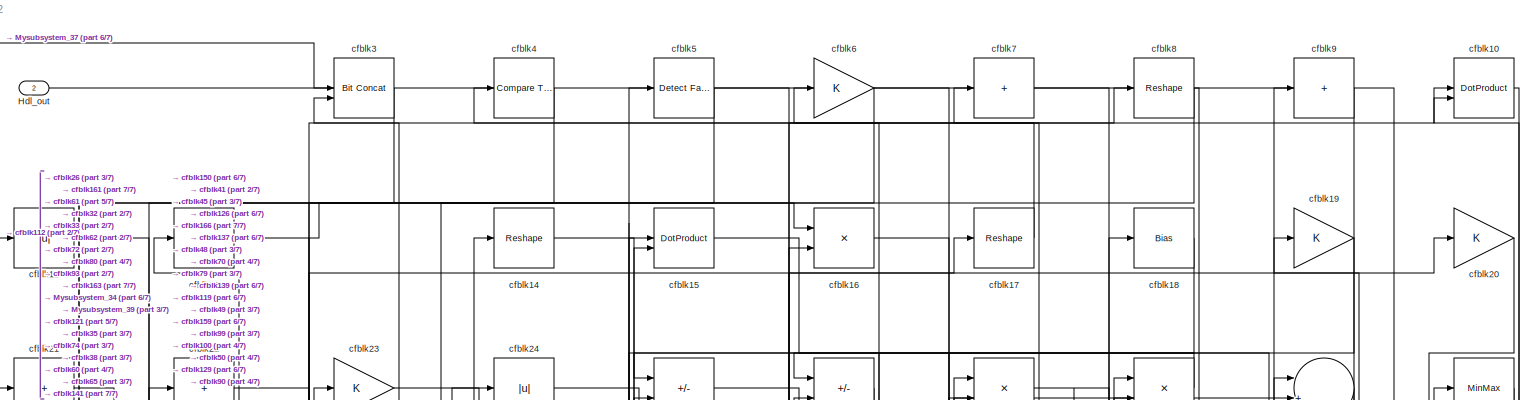
[diagram: root canvas - part 1/7, full width, top band]
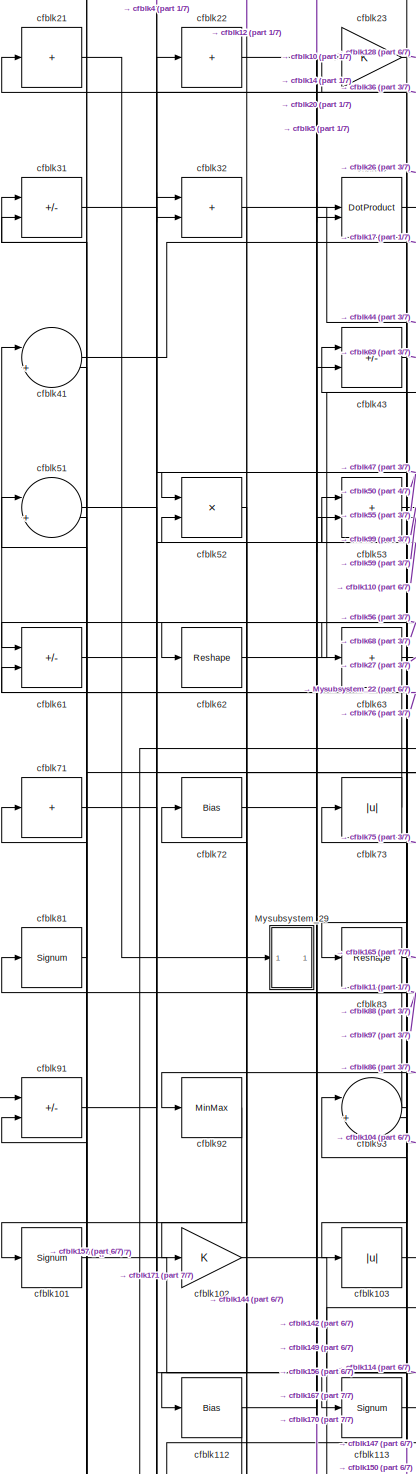
[diagram: root canvas - part 2/7, middle left region]
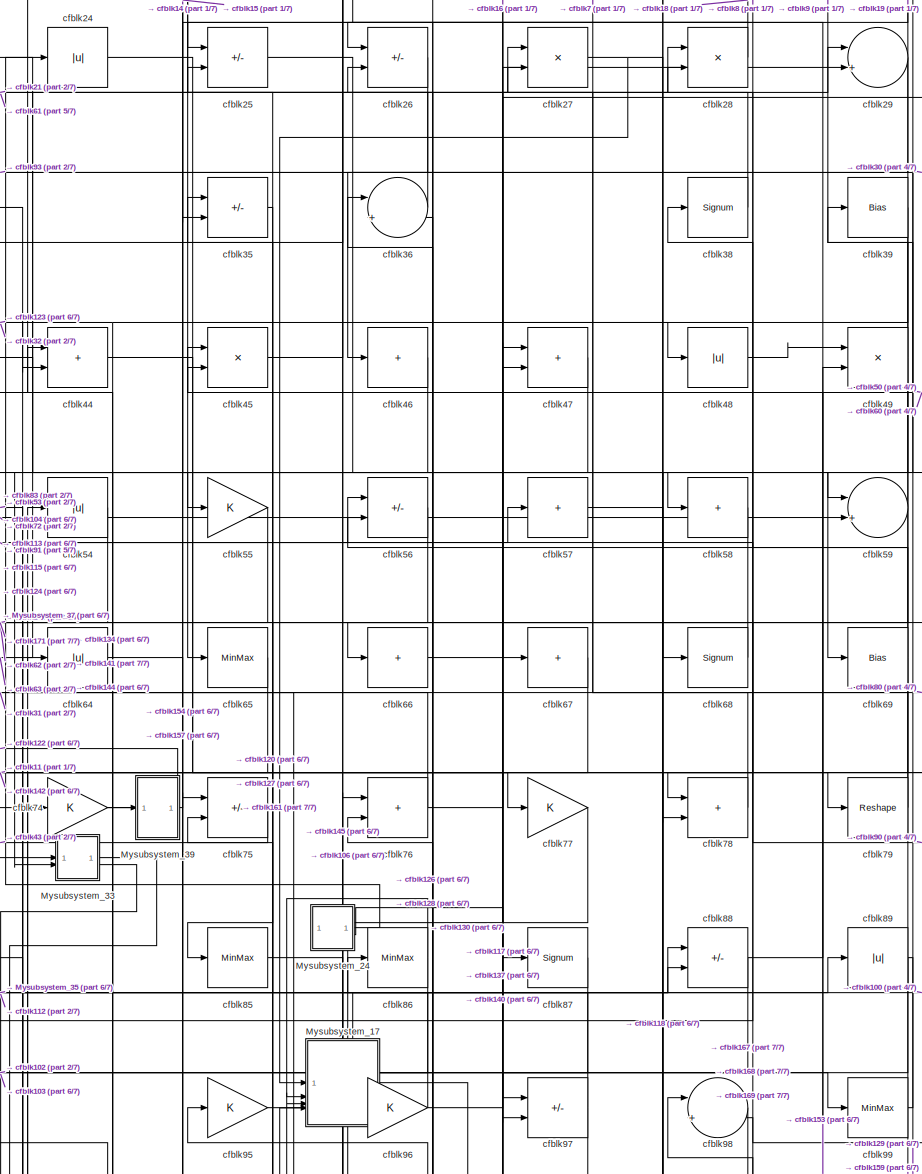
[diagram: root canvas - part 3/7, central region]
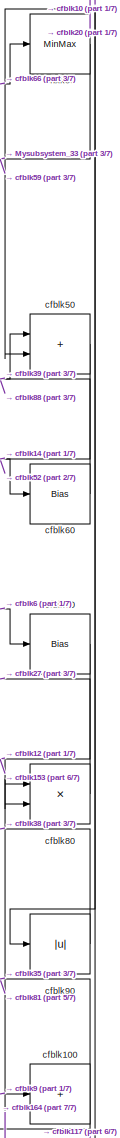
[diagram: root canvas - part 4/7, middle right region]
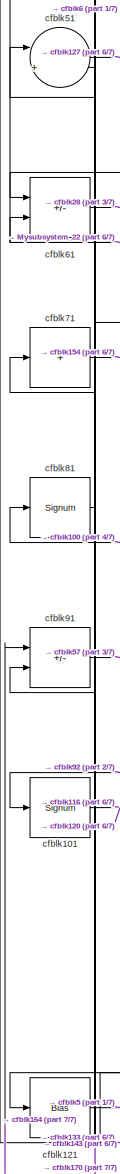
[diagram: root canvas - part 5/7, middle left region]
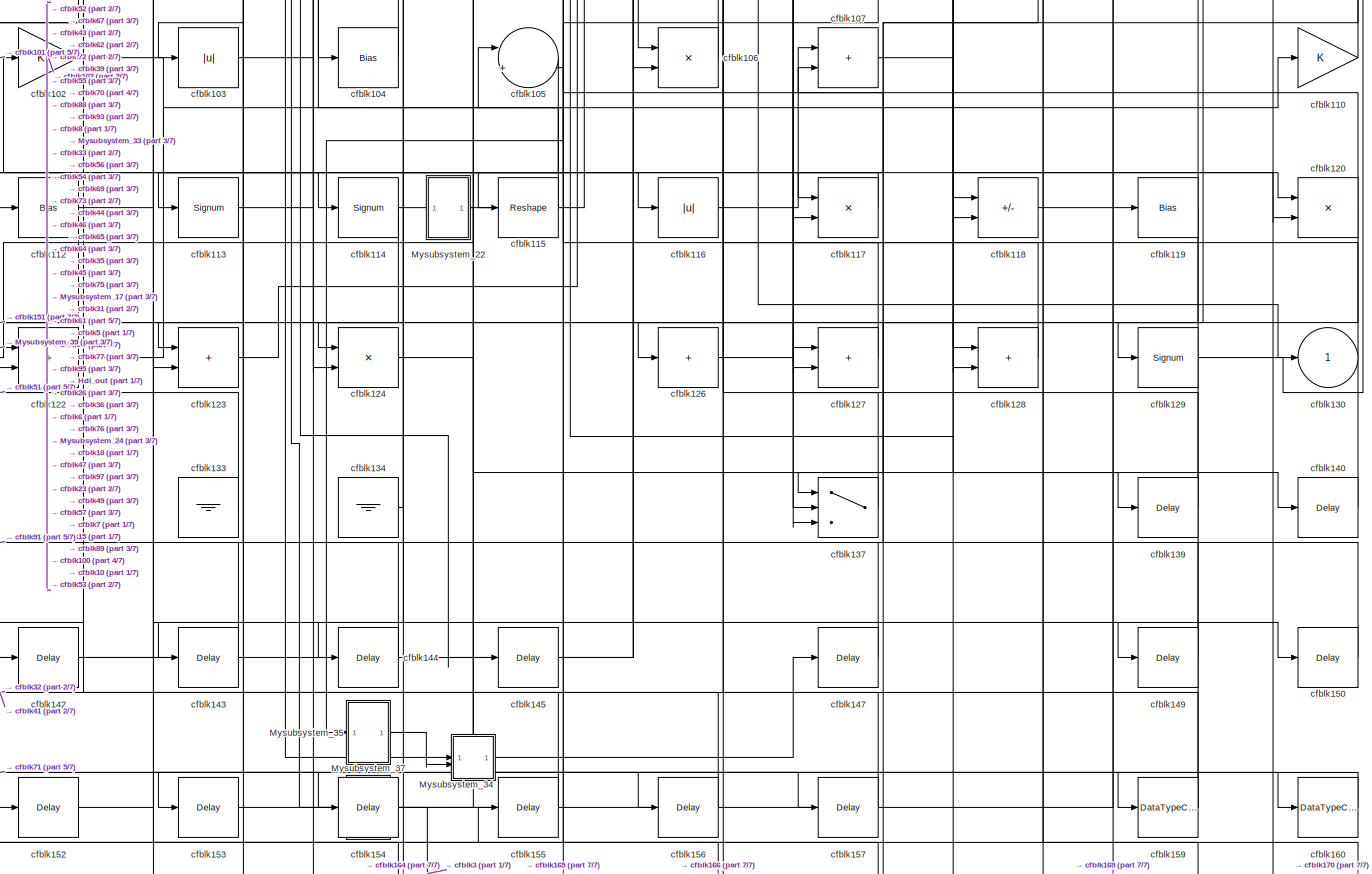
[diagram: root canvas - part 6/7, full width, bottom band]
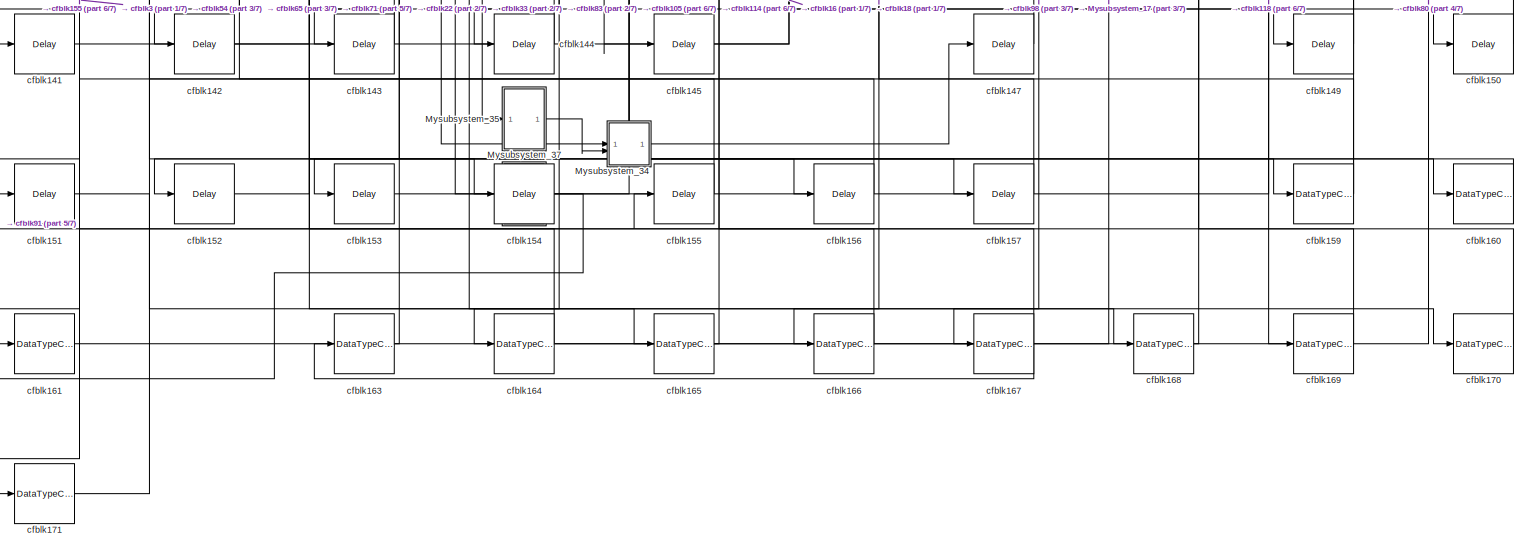
[diagram: root canvas - part 7/7, full width, bottom band]
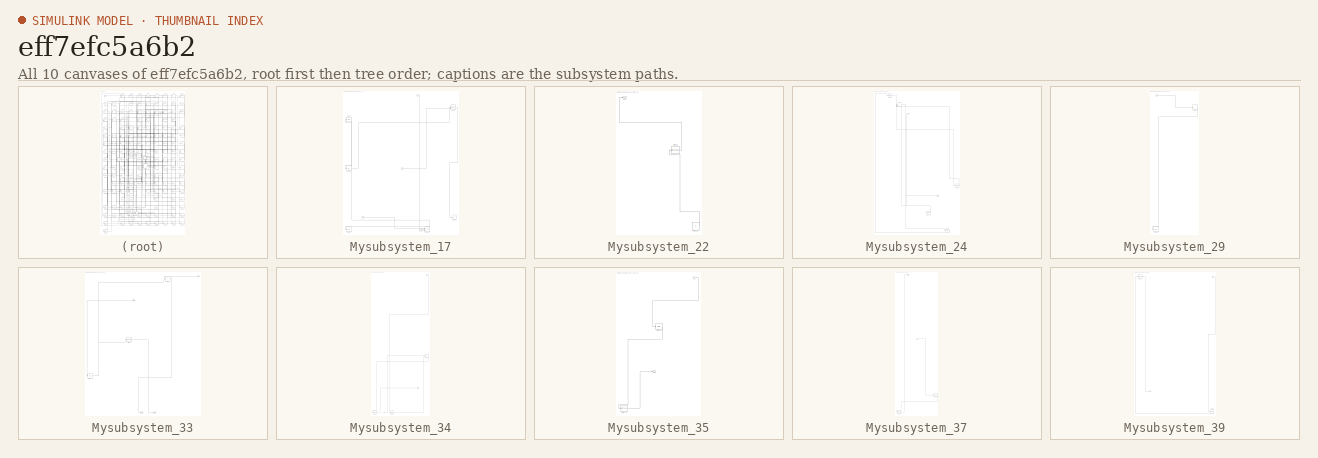
[diagram: thumbnail index - all 10 canvases of the model, root first then tree order]
MODEL slx_eff7efc5a6b2
KIND model
CONFIG AbsTol = auto
CONFIG EnableMultiTasking = off
CONFIG FixedStep = auto
CONFIG MaxStep = auto
CONFIG MinStep = auto
CONFIG RelTol = 1e-3
CONFIG SampleTimeConstraint = Unconstrained
CONFIG SolverName = VariableStepAuto
CONFIG StartTime = 0.0
CONFIG StopTime = 10.0
BLOCK [Outport] Hdl_out
  OutDataTypeStr = uint8
  Port = 2
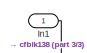
[diagram: Mysubsystem_17 - part 1/3, top center region]
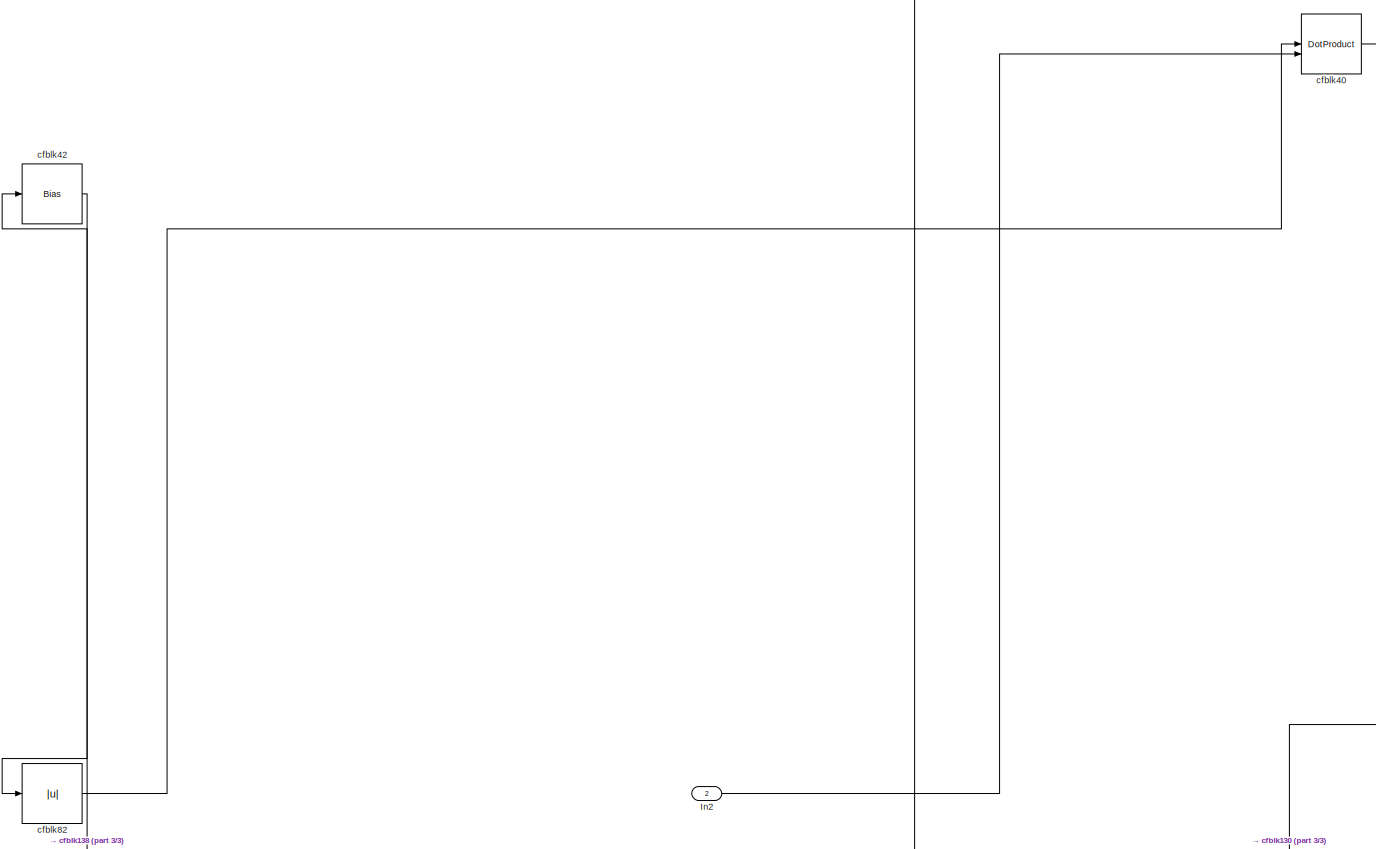
[diagram: Mysubsystem_17 - part 2/3, full width, top band]
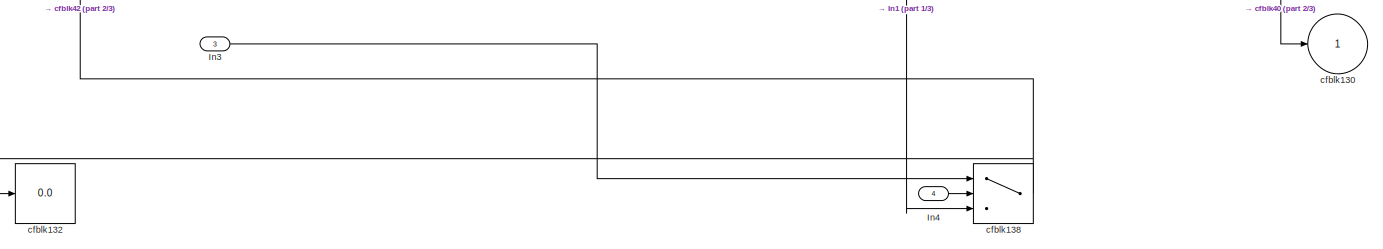
[diagram: Mysubsystem_17 - part 3/3, full width, bottom band]
BLOCK [SubSystem] Mysubsystem_17
  RTWFcnName = Mysubsystem_17
  RTWFcnNameOpts = User specified
  RTWFileNameOpts = Use function name
  RTWSystemCode = Reusable function
  TreatAsAtomicUnit = on
BLOCK [Inport] Mysubsystem_17/In1
BLOCK [Inport] Mysubsystem_17/In2
  Port = 2
BLOCK [Inport] Mysubsystem_17/In3
  Port = 3
BLOCK [Inport] Mysubsystem_17/In4
  Port = 4
BLOCK [Outport] Mysubsystem_17/cfblk130
  VectorParamsAs1DForOutWhenUnconnected = off
BLOCK [Display] Mysubsystem_17/cfblk132
  Decimation = 1
BLOCK [Switch] Mysubsystem_17/cfblk138
  InputSameDT = off
  SaturateOnIntegerOverflow = off
BLOCK [DotProduct] Mysubsystem_17/cfblk40
  OutDataTypeStr = Inherit: Inherit via internal rule
BLOCK [Bias] Mysubsystem_17/cfblk42
  Bias = 0.0
  SaturateOnIntegerOverflow = off
BLOCK [Abs] Mysubsystem_17/cfblk82
  SaturateOnIntegerOverflow = off
BLOCK [SubSystem] Mysubsystem_22
  RTWFcnName = Mysubsystem_22
  RTWFcnNameOpts = User specified
  RTWFileNameOpts = Use function name
  RTWSystemCode = Reusable function
  TreatAsAtomicUnit = on
BLOCK [Outport] Mysubsystem_22/Out1
BLOCK [Constant] Mysubsystem_22/cfblk135
  SampleTime = -1
BLOCK [Reshape] Mysubsystem_22/cfblk94
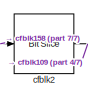
[diagram: Mysubsystem_24 - part 1/7, top left region]
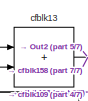
[diagram: Mysubsystem_24 - part 2/7, top left region]
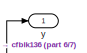
[diagram: Mysubsystem_24 - part 3/7, top center region]
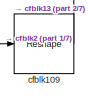
[diagram: Mysubsystem_24 - part 4/7, middle right region]
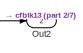
[diagram: Mysubsystem_24 - part 5/7, bottom right region]
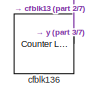
[diagram: Mysubsystem_24 - part 6/7, bottom center region]
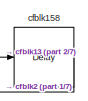
[diagram: Mysubsystem_24 - part 7/7, bottom right region]
BLOCK [SubSystem] Mysubsystem_24
  RTWFcnName = Mysubsystem_24
  RTWFcnNameOpts = User specified
  RTWFileNameOpts = Use function name
  RTWSystemCode = Reusable function
  TreatAsAtomicUnit = on
BLOCK [Outport] Mysubsystem_24/Out2
  Port = 2
BLOCK [Reshape] Mysubsystem_24/cfblk109
BLOCK [Sum] Mysubsystem_24/cfblk13
  IconShape = rectangular
BLOCK [Reference] Mysubsystem_24/cfblk136  REF=hdlsllib/Sources/Counter
Limited
  SourceBlock = hdlsllib/Sources/Counter\nLimited
  SourceType = Counter Limited
BLOCK [Delay] Mysubsystem_24/cfblk158
  InputPortMap = u0
  SampleTime = 1
BLOCK [Reference] Mysubsystem_24/cfblk2  REF=hdlsllib/Logic and Bit
Operations/Bit Slice
  SourceBlock = hdlsllib/Logic and Bit\nOperations/Bit Slice
  SourceType = Bit Slice
BLOCK [Outport] Mysubsystem_24/y
BLOCK [SubSystem] Mysubsystem_29
  RTWFcnName = Mysubsystem_29
  RTWFcnNameOpts = User specified
  RTWFileNameOpts = Use function name
  RTWSystemCode = Reusable function
  TreatAsAtomicUnit = on
BLOCK [Inport] Mysubsystem_29/In1
BLOCK [Display] Mysubsystem_29/cfblk131
  Decimation = 1
BLOCK [Sum] Mysubsystem_29/cfblk34
  IconShape = rectangular
  Inputs = +
BLOCK [SubSystem] Mysubsystem_33
  RTWFcnName = Mysubsystem_33
  RTWFcnNameOpts = User specified
  RTWFileNameOpts = Use function name
  RTWSystemCode = Reusable function
  TreatAsAtomicUnit = on
BLOCK [Inport] Mysubsystem_33/In1
BLOCK [Inport] Mysubsystem_33/In2
  Port = 2
BLOCK [Outport] Mysubsystem_33/Out1
BLOCK [Outport] Mysubsystem_33/Out2
  Port = 2
BLOCK [Abs] Mysubsystem_33/cfblk111
  SaturateOnIntegerOverflow = off
BLOCK [Product] Mysubsystem_33/cfblk37
  Inputs = */
  RndMeth = Zero
  SaturateOnIntegerOverflow = on
BLOCK [Reshape] Mysubsystem_33/cfblk84
BLOCK [SubSystem] Mysubsystem_34
  RTWFcnName = Mysubsystem_34
  RTWFcnNameOpts = User specified
  RTWFileNameOpts = Use function name
  RTWSystemCode = Reusable function
  TreatAsAtomicUnit = on
BLOCK [Inport] Mysubsystem_34/In1
BLOCK [Inport] Mysubsystem_34/In2
  Port = 2
BLOCK [Outport] Mysubsystem_34/Out1
BLOCK [Product] Mysubsystem_34/cfblk108
  Inputs = */
  RndMeth = Zero
  SaturateOnIntegerOverflow = on
BLOCK [DataTypeConversion] Mysubsystem_34/cfblk172
  OutDataTypeStr = uint8
  RndMeth = Floor
  SaturateOnIntegerOverflow = off
BLOCK [DataTypeConversion] Mysubsystem_34/cfblk174
  OutDataTypeStr = uint8
  RndMeth = Floor
  SaturateOnIntegerOverflow = off
BLOCK [SubSystem] Mysubsystem_35
  RTWFcnName = Mysubsystem_35
  RTWFcnNameOpts = User specified
  RTWFileNameOpts = Use function name
  RTWSystemCode = Reusable function
  TreatAsAtomicUnit = on
BLOCK [Inport] Mysubsystem_35/In1
BLOCK [Outport] Mysubsystem_35/Out1
BLOCK [Bias] Mysubsystem_35/cfblk125
  Bias = 0.0
  SaturateOnIntegerOverflow = off
BLOCK [DataTypeConversion] Mysubsystem_35/cfblk173
  OutDataTypeStr = uint8
  RndMeth = Floor
  SaturateOnIntegerOverflow = off
BLOCK [SubSystem] Mysubsystem_37
  RTWFcnName = Mysubsystem_37
  RTWFcnNameOpts = User specified
  RTWFileNameOpts = Use function name
  RTWSystemCode = Reusable function
  TreatAsAtomicUnit = on
BLOCK [Inport] Mysubsystem_37/In1
BLOCK [Outport] Mysubsystem_37/Out1
BLOCK [Delay] Mysubsystem_37/cfblk146
  InputPortMap = u0
  SampleTime = 1
BLOCK [DataTypeConversion] Mysubsystem_37/cfblk162
  OutDataTypeStr = uint8
  RndMeth = Floor
  SaturateOnIntegerOverflow = off
BLOCK [SubSystem] Mysubsystem_39
  RTWFcnName = Mysubsystem_39
  RTWFcnNameOpts = User specified
  RTWFileNameOpts = Use function name
  RTWSystemCode = Reusable function
  TreatAsAtomicUnit = on
BLOCK [Inport] Mysubsystem_39/In1
BLOCK [Outport] Mysubsystem_39/Y
BLOCK [Reference] Mysubsystem_39/cfblk1  REF=simulink/Logic and Bit
Operations/Detect
Decrease
  LibrarySourceBlock = hdlsllib/Logic and Bit\nOperations/Detect\nDecrease
  SourceBlock = simulink/Logic and Bit\nOperations/Detect\nDecrease
  SourceType = Detect Decrease
BLOCK [Delay] Mysubsystem_39/cfblk148
  InputPortMap = u0
  SampleTime = 1
BLOCK [DotProduct] cfblk10
  OutDataTypeStr = uint8
BLOCK [Sum] cfblk100
  IconShape = rectangular
  Inputs = +
  OutDataTypeStr = uint8
BLOCK [Signum] cfblk101
BLOCK [Gain] cfblk102
  OutDataTypeStr = uint8
BLOCK [Abs] cfblk103
  OutDataTypeStr = uint8
  SaturateOnIntegerOverflow = off
BLOCK [Bias] cfblk104
  Bias = 0.0
  SaturateOnIntegerOverflow = off
BLOCK [Sum] cfblk105
  Inputs = |++
  OutDataTypeStr = uint8
BLOCK [Product] cfblk106
  Inputs = */
  OutDataTypeStr = uint8
  RndMeth = Zero
  SaturateOnIntegerOverflow = on
BLOCK [Sum] cfblk107
  IconShape = rectangular
  OutDataTypeStr = uint8
BLOCK [Abs] cfblk11
  OutDataTypeStr = uint8
  SaturateOnIntegerOverflow = off
BLOCK [Gain] cfblk110
  OutDataTypeStr = uint8
BLOCK [Bias] cfblk112
  Bias = 0.0
  SaturateOnIntegerOverflow = off
BLOCK [Signum] cfblk113
BLOCK [Signum] cfblk114
BLOCK [Reshape] cfblk115
BLOCK [Abs] cfblk116
  OutDataTypeStr = uint8
  SaturateOnIntegerOverflow = off
BLOCK [Product] cfblk117
  Inputs = */
  OutDataTypeStr = uint8
  RndMeth = Zero
  SaturateOnIntegerOverflow = on
BLOCK [Sum] cfblk118
  IconShape = rectangular
  Inputs = +-
  OutDataTypeStr = uint8
BLOCK [Bias] cfblk119
  Bias = 0.0
  SaturateOnIntegerOverflow = off
BLOCK [Sum] cfblk12
  IconShape = rectangular
  Inputs = +
  OutDataTypeStr = uint8
BLOCK [Product] cfblk120
  Inputs = */
  OutDataTypeStr = uint8
  RndMeth = Zero
  SaturateOnIntegerOverflow = on
BLOCK [Bias] cfblk121
  Bias = 0.0
  SaturateOnIntegerOverflow = off
BLOCK [Sum] cfblk122
  IconShape = rectangular
  OutDataTypeStr = uint8
BLOCK [Sum] cfblk123
  IconShape = rectangular
  OutDataTypeStr = uint8
BLOCK [Product] cfblk124
  Inputs = */
  OutDataTypeStr = uint8
  RndMeth = Zero
  SaturateOnIntegerOverflow = on
BLOCK [Sum] cfblk126
  IconShape = rectangular
  Inputs = +
  OutDataTypeStr = uint8
BLOCK [Sum] cfblk127
  IconShape = rectangular
  OutDataTypeStr = uint8
BLOCK [Sum] cfblk128
  IconShape = rectangular
  OutDataTypeStr = uint8
BLOCK [Signum] cfblk129
BLOCK [Outport] cfblk130
  OutDataTypeStr = uint8
  VectorParamsAs1DForOutWhenUnconnected = off
BLOCK [Ground] cfblk133
BLOCK [Ground] cfblk134
BLOCK [Switch] cfblk137
  InputSameDT = off
  OutDataTypeStr = uint8
  SaturateOnIntegerOverflow = off
BLOCK [Delay] cfblk139
  InputPortMap = u0
  SampleTime = 1
BLOCK [Reshape] cfblk14
BLOCK [Delay] cfblk140
  InputPortMap = u0
  SampleTime = 1
BLOCK [Delay] cfblk141
  InputPortMap = u0
  SampleTime = 1
BLOCK [Delay] cfblk142
  InputPortMap = u0
  SampleTime = 1
BLOCK [Delay] cfblk143
  InputPortMap = u0
  SampleTime = 1
BLOCK [Delay] cfblk144
  InputPortMap = u0
  SampleTime = 1
BLOCK [Delay] cfblk145
  InputPortMap = u0
  SampleTime = 1
BLOCK [Delay] cfblk147
  InputPortMap = u0
  SampleTime = 1
BLOCK [Delay] cfblk149
  InputPortMap = u0
  SampleTime = 1
BLOCK [DotProduct] cfblk15
  OutDataTypeStr = uint8
BLOCK [Delay] cfblk150
  InputPortMap = u0
  SampleTime = 1
BLOCK [Delay] cfblk151
  InputPortMap = u0
  SampleTime = 1
BLOCK [Delay] cfblk152
  InputPortMap = u0
  SampleTime = 1
BLOCK [Delay] cfblk153
  InputPortMap = u0
  SampleTime = 1
BLOCK [Delay] cfblk154
  InputPortMap = u0
  SampleTime = 1
BLOCK [Delay] cfblk155
  InputPortMap = u0
  SampleTime = 1
BLOCK [Delay] cfblk156
  InputPortMap = u0
  SampleTime = 1
BLOCK [Delay] cfblk157
  InputPortMap = u0
  SampleTime = 1
BLOCK [DataTypeConversion] cfblk159
  OutDataTypeStr = uint8
  RndMeth = Floor
  SaturateOnIntegerOverflow = off
BLOCK [Product] cfblk16
  Inputs = */
  OutDataTypeStr = uint8
  RndMeth = Zero
  SaturateOnIntegerOverflow = on
BLOCK [DataTypeConversion] cfblk160
  OutDataTypeStr = uint8
  RndMeth = Floor
  SaturateOnIntegerOverflow = off
BLOCK [DataTypeConversion] cfblk161
  OutDataTypeStr = uint8
  RndMeth = Floor
  SaturateOnIntegerOverflow = off
BLOCK [DataTypeConversion] cfblk163
  OutDataTypeStr = uint8
  RndMeth = Floor
  SaturateOnIntegerOverflow = off
BLOCK [DataTypeConversion] cfblk164
  OutDataTypeStr = uint8
  RndMeth = Floor
  SaturateOnIntegerOverflow = off
BLOCK [DataTypeConversion] cfblk165
  OutDataTypeStr = uint8
  RndMeth = Floor
  SaturateOnIntegerOverflow = off
BLOCK [DataTypeConversion] cfblk166
  OutDataTypeStr = uint8
  RndMeth = Floor
  SaturateOnIntegerOverflow = off
BLOCK [DataTypeConversion] cfblk167
  OutDataTypeStr = uint8
  RndMeth = Floor
  SaturateOnIntegerOverflow = off
BLOCK [DataTypeConversion] cfblk168
  OutDataTypeStr = uint8
  RndMeth = Floor
  SaturateOnIntegerOverflow = off
BLOCK [DataTypeConversion] cfblk169
  OutDataTypeStr = uint8
  RndMeth = Floor
  SaturateOnIntegerOverflow = off
BLOCK [Reshape] cfblk17
BLOCK [DataTypeConversion] cfblk170
  OutDataTypeStr = uint8
  RndMeth = Floor
  SaturateOnIntegerOverflow = off
BLOCK [DataTypeConversion] cfblk171
  OutDataTypeStr = uint8
  RndMeth = Floor
  SaturateOnIntegerOverflow = off
BLOCK [Bias] cfblk18
  Bias = 0.0
  SaturateOnIntegerOverflow = off
BLOCK [Gain] cfblk19
  OutDataTypeStr = uint8
BLOCK [Gain] cfblk20
  OutDataTypeStr = uint8
BLOCK [Sum] cfblk21
  IconShape = rectangular
  Inputs = +
  OutDataTypeStr = uint8
BLOCK [Sum] cfblk22
  IconShape = rectangular
  Inputs = +
  OutDataTypeStr = uint8
BLOCK [Gain] cfblk23
  OutDataTypeStr = uint8
BLOCK [Abs] cfblk24
  OutDataTypeStr = uint8
  SaturateOnIntegerOverflow = off
BLOCK [Sum] cfblk25
  IconShape = rectangular
  Inputs = +-
  OutDataTypeStr = uint8
BLOCK [Sum] cfblk26
  IconShape = rectangular
  Inputs = +-
  OutDataTypeStr = uint8
BLOCK [Product] cfblk27
  Inputs = */
  OutDataTypeStr = uint8
  RndMeth = Zero
  SaturateOnIntegerOverflow = on
BLOCK [Product] cfblk28
  Inputs = */
  OutDataTypeStr = uint8
  RndMeth = Zero
  SaturateOnIntegerOverflow = on
BLOCK [Sum] cfblk29
  Inputs = |++
  OutDataTypeStr = uint8
BLOCK [Reference] cfblk3  REF=hdlsllib/Logic and Bit
Operations/Bit Concat
  SourceBlock = hdlsllib/Logic and Bit\nOperations/Bit Concat
  SourceType = Bit Concat
BLOCK [MinMax] cfblk30
  OutDataTypeStr = uint8
BLOCK [Sum] cfblk31
  IconShape = rectangular
  Inputs = +-
  OutDataTypeStr = uint8
BLOCK [Sum] cfblk32
  IconShape = rectangular
  OutDataTypeStr = uint8
BLOCK [DotProduct] cfblk33
  OutDataTypeStr = uint8
BLOCK [Sum] cfblk35
  IconShape = rectangular
  Inputs = +-
  OutDataTypeStr = uint8
BLOCK [Sum] cfblk36
  Inputs = |++
  OutDataTypeStr = uint8
BLOCK [Signum] cfblk38
BLOCK [Bias] cfblk39
  Bias = 0.0
  SaturateOnIntegerOverflow = off
BLOCK [Reference] cfblk4  REF=hdlsllib/Logic and Bit
Operations/Compare
To Zero
  SourceBlock = hdlsllib/Logic and Bit\nOperations/Compare\nTo Zero
  SourceType = Compare To Zero
BLOCK [Sum] cfblk41
  Inputs = |++
  OutDataTypeStr = uint8
BLOCK [Sum] cfblk43
  IconShape = rectangular
  Inputs = +-
  OutDataTypeStr = uint8
BLOCK [Sum] cfblk44
  IconShape = rectangular
  OutDataTypeStr = uint8
BLOCK [Product] cfblk45
  Inputs = */
  OutDataTypeStr = uint8
  RndMeth = Zero
  SaturateOnIntegerOverflow = on
BLOCK [Sum] cfblk46
  IconShape = rectangular
  Inputs = +
  OutDataTypeStr = uint8
BLOCK [Sum] cfblk47
  IconShape = rectangular
  OutDataTypeStr = uint8
BLOCK [Abs] cfblk48
  OutDataTypeStr = uint8
  SaturateOnIntegerOverflow = off
BLOCK [Product] cfblk49
  Inputs = */
  OutDataTypeStr = uint8
  RndMeth = Zero
  SaturateOnIntegerOverflow = on
BLOCK [Reference] cfblk5  REF=hdlsllib/Logic and Bit
Operations/Detect Fall
Nonpositive
  SourceBlock = hdlsllib/Logic and Bit\nOperations/Detect Fall\nNonpositive
  SourceType = Detect Fall Nonpositive
BLOCK [Sum] cfblk50
  IconShape = rectangular
  OutDataTypeStr = uint8
BLOCK [Sum] cfblk51
  Inputs = |++
  OutDataTypeStr = uint8
BLOCK [Product] cfblk52
  Inputs = */
  OutDataTypeStr = uint8
  RndMeth = Zero
  SaturateOnIntegerOverflow = on
BLOCK [Sum] cfblk53
  IconShape = rectangular
  OutDataTypeStr = uint8
BLOCK [Abs] cfblk54
  OutDataTypeStr = uint8
  SaturateOnIntegerOverflow = off
BLOCK [Gain] cfblk55
  OutDataTypeStr = uint8
BLOCK [Sum] cfblk56
  IconShape = rectangular
  Inputs = +-
  OutDataTypeStr = uint8
BLOCK [Sum] cfblk57
  IconShape = rectangular
  Inputs = +
  OutDataTypeStr = uint8
BLOCK [Sum] cfblk58
  IconShape = rectangular
  Inputs = +
  OutDataTypeStr = uint8
BLOCK [Sum] cfblk59
  Inputs = |++
  OutDataTypeStr = uint8
BLOCK [Gain] cfblk6
  OutDataTypeStr = uint8
BLOCK [Bias] cfblk60
  Bias = 0.0
  SaturateOnIntegerOverflow = off
BLOCK [Sum] cfblk61
  IconShape = rectangular
  Inputs = +-
  OutDataTypeStr = uint8
BLOCK [Reshape] cfblk62
BLOCK [Sum] cfblk63
  IconShape = rectangular
  Inputs = +
  OutDataTypeStr = uint8
BLOCK [Abs] cfblk64
  OutDataTypeStr = uint8
  SaturateOnIntegerOverflow = off
BLOCK [MinMax] cfblk65
  OutDataTypeStr = uint8
BLOCK [Sum] cfblk66
  IconShape = rectangular
  Inputs = +
  OutDataTypeStr = uint8
BLOCK [Sum] cfblk67
  IconShape = rectangular
  Inputs = +
  OutDataTypeStr = uint8
BLOCK [Signum] cfblk68
BLOCK [Bias] cfblk69
  Bias = 0.0
  SaturateOnIntegerOverflow = off
BLOCK [Sum] cfblk7
  IconShape = rectangular
  Inputs = +
  OutDataTypeStr = uint8
BLOCK [Bias] cfblk70
  Bias = 0.0
  SaturateOnIntegerOverflow = off
BLOCK [Sum] cfblk71
  IconShape = rectangular
  Inputs = +
  OutDataTypeStr = uint8
BLOCK [Bias] cfblk72
  Bias = 0.0
  SaturateOnIntegerOverflow = off
BLOCK [Abs] cfblk73
  OutDataTypeStr = uint8
  SaturateOnIntegerOverflow = off
BLOCK [Gain] cfblk74
  OutDataTypeStr = uint8
BLOCK [Sum] cfblk75
  IconShape = rectangular
  Inputs = +-
  OutDataTypeStr = uint8
BLOCK [Sum] cfblk76
  IconShape = rectangular
  OutDataTypeStr = uint8
BLOCK [Gain] cfblk77
  OutDataTypeStr = uint8
BLOCK [Sum] cfblk78
  IconShape = rectangular
  OutDataTypeStr = uint8
BLOCK [Reshape] cfblk79
BLOCK [Reshape] cfblk8
BLOCK [Product] cfblk80
  Inputs = */
  OutDataTypeStr = uint8
  RndMeth = Zero
  SaturateOnIntegerOverflow = on
BLOCK [Signum] cfblk81
BLOCK [Reshape] cfblk83
BLOCK [MinMax] cfblk85
  OutDataTypeStr = uint8
BLOCK [MinMax] cfblk86
  OutDataTypeStr = uint8
BLOCK [Signum] cfblk87
BLOCK [Sum] cfblk88
  IconShape = rectangular
  Inputs = +-
  OutDataTypeStr = uint8
BLOCK [Abs] cfblk89
  OutDataTypeStr = uint8
  SaturateOnIntegerOverflow = off
BLOCK [Sum] cfblk9
  IconShape = rectangular
  Inputs = +
  OutDataTypeStr = uint8
BLOCK [Abs] cfblk90
  OutDataTypeStr = uint8
  SaturateOnIntegerOverflow = off
BLOCK [Sum] cfblk91
  IconShape = rectangular
  Inputs = +-
  OutDataTypeStr = uint8
BLOCK [MinMax] cfblk92
  OutDataTypeStr = uint8
BLOCK [Sum] cfblk93
  Inputs = |++
  OutDataTypeStr = uint8
BLOCK [Gain] cfblk95
  OutDataTypeStr = uint8
BLOCK [Gain] cfblk96
  OutDataTypeStr = uint8
BLOCK [Sum] cfblk97
  IconShape = rectangular
  Inputs = +-
  OutDataTypeStr = uint8
BLOCK [Sum] cfblk98
  Inputs = |++
  OutDataTypeStr = uint8
BLOCK [MinMax] cfblk99
  OutDataTypeStr = uint8
LINE Mysubsystem_17/In1:1 -> Mysubsystem_17/cfblk138:3
LINE Mysubsystem_17/In2:1 -> Mysubsystem_17/cfblk40:2
LINE Mysubsystem_17/In3:1 -> Mysubsystem_17/cfblk138:1
LINE Mysubsystem_17/In4:1 -> Mysubsystem_17/cfblk138:2
NET Mysubsystem_17/cfblk138:1 -> Mysubsystem_17/cfblk132:1, Mysubsystem_17/cfblk42:1
LINE Mysubsystem_17/cfblk40:1 -> Mysubsystem_17/cfblk130:1
LINE Mysubsystem_17/cfblk42:1 -> Mysubsystem_17/cfblk82:1
LINE Mysubsystem_17/cfblk82:1 -> Mysubsystem_17/cfblk40:1
LINE Mysubsystem_17:1 -> cfblk130:1
LINE Mysubsystem_22/cfblk135:1 -> Mysubsystem_22/cfblk94:1
LINE Mysubsystem_22/cfblk94:1 -> Mysubsystem_22/Out1:1
NET Mysubsystem_22:1 -> cfblk31:1, cfblk61:2
LINE Mysubsystem_24/cfblk109:1 -> Mysubsystem_24/cfblk13:1
NET Mysubsystem_24/cfblk136:1 -> Mysubsystem_24/cfblk13:2, Mysubsystem_24/y:1
NET Mysubsystem_24/cfblk13:1 -> Mysubsystem_24/Out2:1, Mysubsystem_24/cfblk158:1
LINE Mysubsystem_24/cfblk158:1 -> Mysubsystem_24/cfblk2:1
LINE Mysubsystem_24/cfblk2:1 -> Mysubsystem_24/cfblk109:1
LINE Mysubsystem_24:1 -> cfblk24:1
LINE Mysubsystem_24:2 -> cfblk117:2
LINE Mysubsystem_29/In1:1 -> Mysubsystem_29/cfblk34:1
LINE Mysubsystem_29/cfblk34:1 -> Mysubsystem_29/cfblk131:1
LINE Mysubsystem_33/In1:1 -> Mysubsystem_33/cfblk37:1
LINE Mysubsystem_33/In2:1 -> Mysubsystem_33/cfblk111:1
NET Mysubsystem_33/cfblk111:1 -> Mysubsystem_33/cfblk37:2, Mysubsystem_33/cfblk84:1
LINE Mysubsystem_33/cfblk37:1 -> Mysubsystem_33/Out1:1
LINE Mysubsystem_33/cfblk84:1 -> Mysubsystem_33/Out2:1
LINE Mysubsystem_33:1 -> cfblk145:1
LINE Mysubsystem_33:2 -> Mysubsystem_37:1
LINE Mysubsystem_34/In1:1 -> Mysubsystem_34/cfblk174:1
LINE Mysubsystem_34/In2:1 -> Mysubsystem_34/cfblk108:1
LINE Mysubsystem_34/cfblk108:1 -> Mysubsystem_34/cfblk172:1
LINE Mysubsystem_34/cfblk172:1 -> Mysubsystem_34/Out1:1
LINE Mysubsystem_34/cfblk174:1 -> Mysubsystem_34/cfblk108:2
LINE Mysubsystem_34:1 -> cfblk147:1
LINE Mysubsystem_35/In1:1 -> Mysubsystem_35/cfblk125:1
LINE Mysubsystem_35/cfblk125:1 -> Mysubsystem_35/cfblk173:1
LINE Mysubsystem_35/cfblk173:1 -> Mysubsystem_35/Out1:1
LINE Mysubsystem_35:1 -> Mysubsystem_34:2
LINE Mysubsystem_37/In1:1 -> Mysubsystem_37/cfblk146:1
LINE Mysubsystem_37/cfblk146:1 -> Mysubsystem_37/cfblk162:1
LINE Mysubsystem_37/cfblk162:1 -> Mysubsystem_37/Out1:1
LINE Mysubsystem_37:1 -> cfblk3:1
LINE Mysubsystem_39/In1:1 -> Mysubsystem_39/cfblk148:1
LINE Mysubsystem_39/cfblk148:1 -> Mysubsystem_39/cfblk1:1
LINE Mysubsystem_39/cfblk1:1 -> Mysubsystem_39/Y:1
LINE Mysubsystem_39:1 -> cfblk122:1
NET cfblk100:1 -> cfblk117:1, cfblk35:1, cfblk81:1
NET cfblk101:1 -> cfblk116:1, cfblk120:2
LINE cfblk102:1 -> cfblk114:1
LINE cfblk103:1 -> cfblk56:2
LINE cfblk104:1 -> cfblk73:1
LINE cfblk105:1 -> cfblk164:1
LINE cfblk106:1 -> cfblk95:1
LINE cfblk107:1 -> cfblk118:1
LINE cfblk10:1 -> cfblk90:1
LINE cfblk110:1 -> cfblk53:1
NET cfblk112:1 -> cfblk11:1, cfblk88:2
LINE cfblk113:1 -> cfblk88:1
NET cfblk114:1 -> cfblk123:2, cfblk151:1, cfblk160:1
LINE cfblk115:1 -> cfblk54:1
LINE cfblk116:1 -> cfblk107:1
LINE cfblk117:1 -> cfblk113:1
LINE cfblk118:1 -> cfblk169:1
LINE cfblk119:1 -> cfblk137:1
LINE cfblk11:1 -> cfblk79:1
NET cfblk120:1 -> cfblk126:1, cfblk45:1
LINE cfblk121:1 -> cfblk5:1
LINE cfblk122:1 -> cfblk110:1
LINE cfblk123:1 -> Mysubsystem_17:3
LINE cfblk124:1 -> cfblk140:1
NET cfblk126:1 -> cfblk47:2, cfblk6:1
LINE cfblk127:1 -> cfblk75:2
LINE cfblk128:1 -> cfblk36:1
LINE cfblk129:1 -> cfblk10:1
NET cfblk12:1 -> cfblk16:1, cfblk80:2
LINE cfblk133:1 -> cfblk51:1
LINE cfblk134:1 -> cfblk44:1
LINE cfblk137:1 -> cfblk76:2
LINE cfblk139:1 -> cfblk127:1
LINE cfblk140:1 -> cfblk47:1
LINE cfblk141:1 -> cfblk16:2
LINE cfblk142:1 -> cfblk43:2
LINE cfblk143:1 -> cfblk91:2
LINE cfblk144:1 -> cfblk52:2
LINE cfblk145:1 -> cfblk76:1
LINE cfblk147:1 -> cfblk53:2
LINE cfblk149:1 -> cfblk107:2
NET cfblk14:1 -> cfblk60:1, cfblk65:1
LINE cfblk150:1 -> cfblk93:1
LINE cfblk151:1 -> cfblk168:1
LINE cfblk152:1 -> cfblk159:1
LINE cfblk153:1 -> cfblk49:2
LINE cfblk154:1 -> cfblk75:1
LINE cfblk155:1 -> cfblk122:2
LINE cfblk156:1 -> cfblk32:1
LINE cfblk157:1 -> cfblk41:2
NET cfblk159:1 -> Hdl_out:1, cfblk26:2
LINE cfblk15:1 -> cfblk119:1
LINE cfblk160:1 -> cfblk152:1
NET cfblk161:1 -> Mysubsystem_17:4, cfblk18:1
LINE cfblk163:1 -> cfblk3:2
NET cfblk164:1 -> cfblk80:1, cfblk91:1
LINE cfblk165:1 -> cfblk105:1
LINE cfblk166:1 -> cfblk105:2
NET cfblk167:1 -> cfblk163:1, cfblk33:1
LINE cfblk168:1 -> cfblk98:1
LINE cfblk169:1 -> cfblk98:2
LINE cfblk16:1 -> cfblk48:1
NET cfblk170:1 -> cfblk155:1, cfblk71:1
LINE cfblk171:1 -> cfblk22:1
LINE cfblk17:1 -> cfblk4:1
NET cfblk18:1 -> cfblk137:3, cfblk166:1, cfblk35:2
LINE cfblk19:1 -> cfblk26:1
LINE cfblk20:1 -> cfblk50:2
LINE cfblk21:1 -> Mysubsystem_29:1
LINE cfblk22:1 -> cfblk170:1
LINE cfblk23:1 -> cfblk128:1
LINE cfblk24:1 -> cfblk97:1
NET cfblk25:1 -> cfblk58:1, cfblk87:1
LINE cfblk26:1 -> cfblk93:2
NET cfblk27:1 -> Mysubsystem_17:1, cfblk68:1
LINE cfblk28:1 -> cfblk25:1
LINE cfblk29:1 -> cfblk46:1
NET cfblk30:1 -> Mysubsystem_33:1, cfblk59:1
LINE cfblk31:1 -> cfblk55:1
NET cfblk32:1 -> cfblk112:1, cfblk44:2
LINE cfblk33:1 -> cfblk128:2
LINE cfblk35:1 -> cfblk115:1
LINE cfblk36:1 -> cfblk21:1
LINE cfblk38:1 -> cfblk15:2
NET cfblk39:1 -> cfblk123:1, cfblk74:1
LINE cfblk3:1 -> cfblk161:1
LINE cfblk41:1 -> cfblk17:1
LINE cfblk43:1 -> cfblk69:1
NET cfblk44:1 -> cfblk77:1, cfblk97:2
LINE cfblk45:1 -> cfblk8:1
NET cfblk46:1 -> Mysubsystem_33:2, cfblk144:1, cfblk45:2
LINE cfblk47:1 -> cfblk63:1
LINE cfblk48:1 -> cfblk49:1
NET cfblk49:1 -> cfblk118:2, cfblk9:1
LINE cfblk4:1 -> cfblk32:2
LINE cfblk50:1 -> cfblk52:1
LINE cfblk51:1 -> cfblk127:2
LINE cfblk52:1 -> cfblk92:1
LINE cfblk53:1 -> cfblk99:1
LINE cfblk54:1 -> cfblk171:1
LINE cfblk55:1 -> cfblk143:1
NET cfblk56:1 -> cfblk124:2, cfblk83:1
LINE cfblk57:1 -> cfblk120:1
LINE cfblk58:1 -> cfblk85:1
NET cfblk59:1 -> cfblk25:2, cfblk56:1, cfblk78:1
NET cfblk5:1 -> cfblk150:1, cfblk33:2
LINE cfblk60:1 -> cfblk39:1
NET cfblk61:1 -> cfblk121:1, cfblk28:1
NET cfblk62:1 -> cfblk10:2, cfblk149:1, cfblk14:1
LINE cfblk63:1 -> cfblk27:1
LINE cfblk64:1 -> cfblk157:1
NET cfblk65:1 -> cfblk124:1, cfblk141:1
LINE cfblk66:1 -> cfblk30:1
LINE cfblk67:1 -> cfblk142:1
LINE cfblk68:1 -> cfblk62:1
NET cfblk69:1 -> cfblk104:1, cfblk28:2, cfblk66:1, cfblk78:2
NET cfblk6:1 -> cfblk61:1, cfblk70:1
LINE cfblk70:1 -> cfblk153:1
LINE cfblk71:1 -> cfblk154:1
NET cfblk72:1 -> cfblk156:1, cfblk20:1, cfblk59:2
LINE cfblk73:1 -> cfblk41:1
LINE cfblk74:1 -> cfblk15:1
LINE cfblk75:1 -> cfblk43:1
NET cfblk76:1 -> cfblk29:2, cfblk31:2, cfblk67:1
LINE cfblk77:1 -> cfblk106:1
NET cfblk78:1 -> cfblk36:2, cfblk64:1
LINE cfblk79:1 -> cfblk7:1
LINE cfblk7:1 -> cfblk139:1
LINE cfblk80:1 -> cfblk27:2
LINE cfblk81:1 -> cfblk51:2
LINE cfblk83:1 -> cfblk165:1
LINE cfblk85:1 -> cfblk106:2
NET cfblk86:1 -> Mysubsystem_17:2, cfblk102:1
LINE cfblk87:1 -> cfblk96:1
NET cfblk88:1 -> cfblk103:1, cfblk50:1
NET cfblk89:1 -> cfblk129:1, cfblk137:2
NET cfblk8:1 -> Mysubsystem_34:1, Mysubsystem_39:1
LINE cfblk90:1 -> cfblk38:1
LINE cfblk91:1 -> cfblk57:1
LINE cfblk92:1 -> cfblk101:1
NET cfblk93:1 -> cfblk12:1, cfblk23:1
LINE cfblk95:1 -> cfblk89:1
NET cfblk96:1 -> cfblk29:1, cfblk86:1
NET cfblk97:1 -> Mysubsystem_35:1, cfblk72:1
LINE cfblk98:1 -> cfblk167:1
LINE cfblk99:1 -> cfblk19:1
LINE cfblk9:1 -> cfblk100:1
note: NET lines group one-source signal fan-out (src -> all destinations, sorted); 1:1 wires keep LINE
